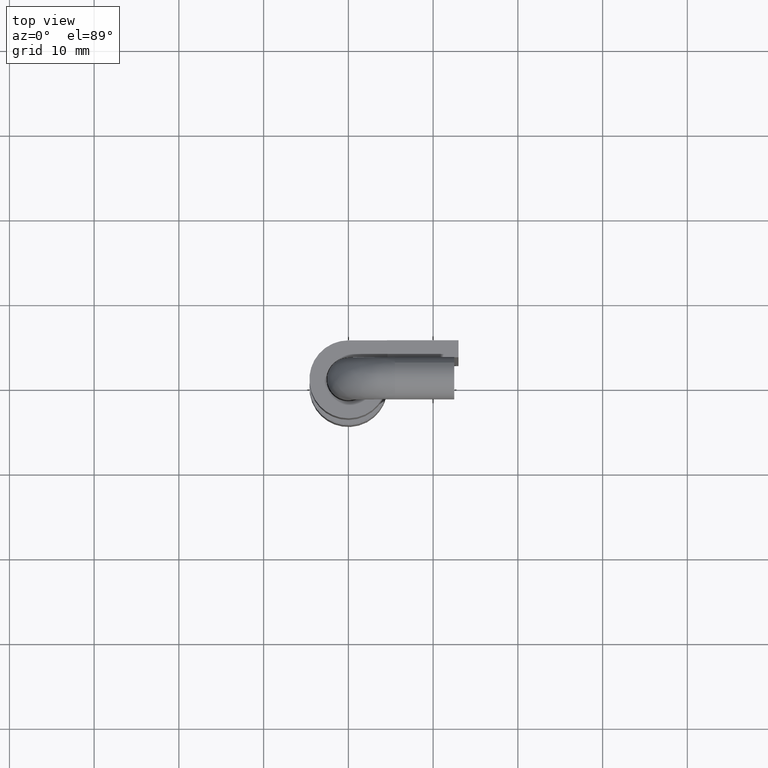
[diagram: clean part render]
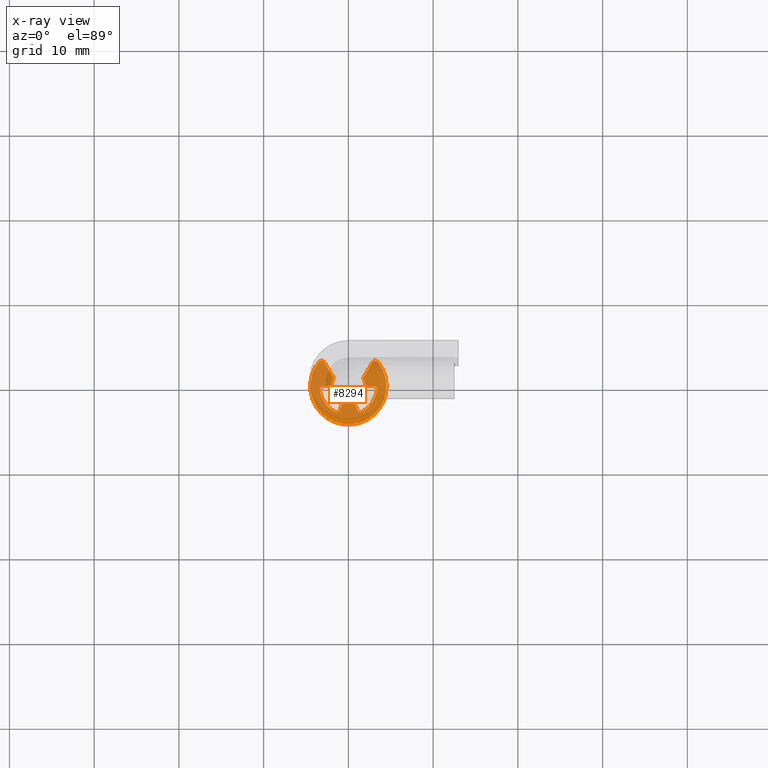
[diagram: x-ray — body ghosted, one internal face saturated and labeled with its STEP entity id]
A machine part, top view, then the same camera in x-ray: the body is ghosted and one INTERNAL B-rep face — a face not visible from any outside direction — is saturated and labeled: STEP entity #8294.
In plain terms, the highlighted face is a freeform B-spline surface patch.
Its self-contained STEP definition (entity closure, byte-faithful):
#8049=CARTESIAN_POINT('',(-4.939659992833498,-4.875198945035996,25.750000000034849));
#8050=CARTESIAN_POINT('',(4.939660234492952,-4.875198945035996,25.750000000034849));
#8051=CARTESIAN_POINT('',(-4.939659992833498,3.386689829091729,25.750000000034849));
#8052=CARTESIAN_POINT('',(4.939660234492952,3.386689829091729,25.750000000034849));
#8053=B_SPLINE_SURFACE_WITH_KNOTS('',1,1,((#8049,#8051),(#8050,#8052)),.UNSPECIFIED.,.F.,.F.,.U.,(2,2),(2,2),(0.0,9.879320227326449),(0.0,8.261888774127725),.UNSPECIFIED.);
#8054=CARTESIAN_POINT('',(2.814243000000035,2.811569000000000,25.750000000034898));
#8055=VERTEX_POINT('',#8054);
#8056=CARTESIAN_POINT('',(3.469008327923510,2.866353296576910,25.750000000034898));
#8057=VERTEX_POINT('',#8056);
#8058=CARTESIAN_POINT('',(2.814243000000035,2.811569000000000,25.750000000034898));
#8059=CARTESIAN_POINT('',(2.918840081879053,2.992730241213392,25.750000000034902));
#8060=CARTESIAN_POINT('',(3.127300447568566,3.010172167459911,25.750000000034898));
#8061=CARTESIAN_POINT('',(3.335760813258079,3.027614093706430,25.750000000034902));
#8062=CARTESIAN_POINT('',(3.469008327923510,2.866353296576910,25.750000000034898));
#8070=(BOUNDED_CURVE()B_SPLINE_CURVE(2,(#8058,#8059,#8060,#8061,#8062),.UNSPECIFIED.,.F.,.U.)B_SPLINE_CURVE_WITH_KNOTS((3,2,3),(0.0,0.500000000000000,1.0),.UNSPECIFIED.)CURVE()GEOMETRIC_REPRESENTATION_ITEM()RATIONAL_B_SPLINE_CURVE((1.0,0.886136415497136,1.0,0.886136415497136,1.0))REPRESENTATION_ITEM(''));
#8071=EDGE_CURVE('',#8055,#8057,#8070,.T.);
#8072=ORIENTED_EDGE('',*,*,#8071,.T.);
#8073=CARTESIAN_POINT('',(-3.469011479641475,2.866349482201300,25.750000000034898));
#8074=VERTEX_POINT('',#8073);
#8075=CARTESIAN_POINT('',(3.469008327923510,2.866353296576911,25.750000000034898));
#8076=CARTESIAN_POINT('',(6.159627246470954,-0.389972239726072,25.750000000034902));
#8077=CARTESIAN_POINT('',(3.079815319841502,-3.280965954664812,25.750000000034898));
#8078=CARTESIAN_POINT('',(0.000003393212051,-6.171959669603554,25.750000000034902));
#8079=CARTESIAN_POINT('',(-3.079811712229154,-3.280969341096641,25.750000000034898));
#8080=CARTESIAN_POINT('',(-6.159626817670355,-0.389979012589730,25.750000000034902));
#8081=CARTESIAN_POINT('',(-3.469011479641474,2.866349482201301,25.750000000034898));
#8089=(BOUNDED_CURVE()B_SPLINE_CURVE(2,(#8075,#8076,#8077,#8078,#8079,#8080,#8081),.UNSPECIFIED.,.F.,.U.)B_SPLINE_CURVE_WITH_KNOTS((3,2,2,3),(0.0,0.333333333333333,0.666666666666667,1.0),.UNSPECIFIED.)CURVE()GEOMETRIC_REPRESENTATION_ITEM()RATIONAL_B_SPLINE_CURVE((1.0,0.729103921751383,1.0,0.729103921751383,1.0,0.729103921751383,1.0))REPRESENTATION_ITEM(''));
#8090=EDGE_CURVE('',#8057,#8074,#8089,.T.);
#8091=ORIENTED_EDGE('',*,*,#8090,.T.);
#8092=CARTESIAN_POINT('',(-2.814243541780655,2.811564486089975,25.750000000034898));
#8093=VERTEX_POINT('',#8092);
#8094=CARTESIAN_POINT('',(-3.469011479641475,2.866349482201300,25.750000000034898));
#8095=CARTESIAN_POINT('',(-3.335764949053940,3.027614525413569,25.750000000034898));
#8096=CARTESIAN_POINT('',(-3.127301967155006,3.010172127263307,25.750000000034898));
#8097=CARTESIAN_POINT('',(-2.918838985256072,2.992729729113045,25.750000000034898));
#8098=CARTESIAN_POINT('',(-2.814243541780645,2.811564486089981,25.750000000034898));
#8106=(BOUNDED_CURVE()B_SPLINE_CURVE(2,(#8094,#8095,#8096,#8097,#8098),.UNSPECIFIED.,.F.,.U.)B_SPLINE_CURVE_WITH_KNOTS((3,2,3),(0.0,0.500000000000000,1.0),.UNSPECIFIED.)CURVE()GEOMETRIC_REPRESENTATION_ITEM()RATIONAL_B_SPLINE_CURVE((1.0,0.886134007897589,1.0,0.886134007897589,1.0))REPRESENTATION_ITEM(''));
#8107=EDGE_CURVE('',#8074,#8093,#8106,.T.);
#8108=ORIENTED_EDGE('',*,*,#8107,.T.);
#8109=CARTESIAN_POINT('',(-1.749998000000000,0.968247000000000,25.750000000034898));
#8110=VERTEX_POINT('',#8109);
#8111=CARTESIAN_POINT('',(-2.814243541780655,2.811564486089975,25.750000000034898));
#8112=CARTESIAN_POINT('',(-1.749998000000000,0.968247000000000,25.750000000034898));
#8113=QUASI_UNIFORM_CURVE('',1,(#8111,#8112),.UNSPECIFIED.,.F.,.U.);
#8114=EDGE_CURVE('',#8093,#8110,#8113,.T.);
#8115=ORIENTED_EDGE('',*,*,#8114,.T.);
#8116=CARTESIAN_POINT('',(-1.999999999999855,-0.000000767944871,25.750000000034898));
#8117=VERTEX_POINT('',#8116);
#8118=CARTESIAN_POINT('',(-1.999999999999855,-0.000000767944871,25.750000000034898));
#8119=CARTESIAN_POINT('',(-1.999999679081359,0.516398193194897,25.750000000034902));
#8120=CARTESIAN_POINT('',(-1.749998000000000,0.968247000000000,25.750000000034898));
#8128=(BOUNDED_CURVE()B_SPLINE_CURVE(2,(#8118,#8119,#8120),.UNSPECIFIED.,.F.,.U.)CURVE()GEOMETRIC_REPRESENTATION_ITEM()QUASI_UNIFORM_CURVE()RATIONAL_B_SPLINE_CURVE((1.0,0.968245664413561,1.0))REPRESENTATION_ITEM(''));
#8129=EDGE_CURVE('',#8117,#8110,#8128,.T.);
#8130=ORIENTED_EDGE('',*,*,#8129,.F.);
#8131=CARTESIAN_POINT('',(-2.973213000000000,0.0,25.750000000034898));
#8132=VERTEX_POINT('',#8131);
#8133=CARTESIAN_POINT('',(-1.999999999999855,-0.000000767944871,25.750000000034898));
#8134=CARTESIAN_POINT('',(-2.973213000000000,0.0,25.750000000034898));
#8135=QUASI_UNIFORM_CURVE('',1,(#8133,#8134),.UNSPECIFIED.,.F.,.U.);
#8136=EDGE_CURVE('',#8117,#8132,#8135,.T.);
#8137=ORIENTED_EDGE('',*,*,#8136,.T.);
#8138=CARTESIAN_POINT('',(-3.369641529399600,-0.453334114273040,25.750000000034898));
#8139=VERTEX_POINT('',#8138);
#8140=CARTESIAN_POINT('',(-3.369641529399600,-0.453334114273040,25.750000000034898));
#8141=CARTESIAN_POINT('',(-3.393851964864456,-0.273376164245372,25.750000000034902));
#8142=CARTESIAN_POINT('',(-3.274321988332472,-0.136688181364141,25.750000000034898));
#8143=CARTESIAN_POINT('',(-3.154792011800489,-0.000000198482910,25.750000000034902));
#8144=CARTESIAN_POINT('',(-2.973213000000000,0.0,25.750000000034898));
#8152=(BOUNDED_CURVE()B_SPLINE_CURVE(2,(#8140,#8141,#8142,#8143,#8144),.UNSPECIFIED.,.F.,.U.)B_SPLINE_CURVE_WITH_KNOTS((3,2,3),(0.0,0.500000000000000,1.0),.UNSPECIFIED.)CURVE()GEOMETRIC_REPRESENTATION_ITEM()RATIONAL_B_SPLINE_CURVE((1.0,0.910571467977568,1.0,0.910571467977568,1.0))REPRESENTATION_ITEM(''));
#8153=EDGE_CURVE('',#8139,#8132,#8152,.T.);
#8154=ORIENTED_EDGE('',*,*,#8153,.F.);
#8155=CARTESIAN_POINT('',(-1.578480529623520,-3.011378292011725,25.750000000034898));
#8156=VERTEX_POINT('',#8155);
#8157=CARTESIAN_POINT('',(-1.578480529623521,-3.011378292011724,25.750000000034898));
#8158=CARTESIAN_POINT('',(-3.135280752002617,-2.195347026176524,25.750000000034902));
#8159=CARTESIAN_POINT('',(-3.369641529399600,-0.453334114273040,25.750000000034898));
#8167=(BOUNDED_CURVE()B_SPLINE_CURVE(2,(#8157,#8158,#8159),.UNSPECIFIED.,.F.,.U.)CURVE()GEOMETRIC_REPRESENTATION_ITEM()QUASI_UNIFORM_CURVE()RATIONAL_B_SPLINE_CURVE((1.0,0.888315034763492,1.0))REPRESENTATION_ITEM(''));
#8168=EDGE_CURVE('',#8156,#8139,#8167,.T.);
#8169=ORIENTED_EDGE('',*,*,#8168,.F.);
#8170=CARTESIAN_POINT('',(-1.016899023318246,-2.793905254139005,25.750000000034898));
#8171=VERTEX_POINT('',#8170);
#8172=CARTESIAN_POINT('',(-1.016899023318246,-2.793905254139005,25.750000000034898));
#8173=CARTESIAN_POINT('',(-1.079002983578292,-2.964534068624199,25.750000000034898));
#8174=CARTESIAN_POINT('',(-1.248329432398294,-3.030105916706155,25.750000000034898));
#8175=CARTESIAN_POINT('',(-1.417655881218296,-3.095677764788112,25.750000000034898));
#8176=CARTESIAN_POINT('',(-1.578480529623520,-3.011378292011725,25.750000000034898));
#8184=(BOUNDED_CURVE()B_SPLINE_CURVE(2,(#8172,#8173,#8174,#8175,#8176),.UNSPECIFIED.,.F.,.U.)B_SPLINE_CURVE_WITH_KNOTS((3,2,3),(0.0,0.500000000000000,1.0),.UNSPECIFIED.)CURVE()GEOMETRIC_REPRESENTATION_ITEM()RATIONAL_B_SPLINE_CURVE((1.0,0.910571394558239,1.0,0.910571394558239,1.0))REPRESENTATION_ITEM(''));
#8185=EDGE_CURVE('',#8171,#8156,#8184,.T.);
#8186=ORIENTED_EDGE('',*,*,#8185,.F.);
#8187=CARTESIAN_POINT('',(-0.684039999999982,-1.879379000000000,25.750000000034898));
#8188=VERTEX_POINT('',#8187);
#8189=CARTESIAN_POINT('',(-1.016899023318246,-2.793905254139005,25.750000000034898));
#8190=CARTESIAN_POINT('',(-0.684039999999982,-1.879379000000000,25.750000000034898));
#8191=QUASI_UNIFORM_CURVE('',1,(#8189,#8190),.UNSPECIFIED.,.F.,.U.);
#8192=EDGE_CURVE('',#8171,#8188,#8191,.T.);
#8193=ORIENTED_EDGE('',*,*,#8192,.T.);
#8194=CARTESIAN_POINT('',(0.684038515372173,-1.879385886263765,25.750000000034898));
#8195=VERTEX_POINT('',#8194);
#8196=CARTESIAN_POINT('',(0.684038515372173,-1.879385886263765,25.750000000034898));
#8197=CARTESIAN_POINT('',(-0.000000975744737,-2.128352739374768,25.750000000034898));
#8198=CARTESIAN_POINT('',(-0.684039999999982,-1.879379000000000,25.750000000034898));
#8206=(BOUNDED_CURVE()B_SPLINE_CURVE(2,(#8196,#8197,#8198),.UNSPECIFIED.,.F.,.U.)CURVE()GEOMETRIC_REPRESENTATION_ITEM()QUASI_UNIFORM_CURVE()RATIONAL_B_SPLINE_CURVE((1.0,0.939692622459320,1.0))REPRESENTATION_ITEM(''));
#8207=EDGE_CURVE('',#8195,#8188,#8206,.T.);
#8208=ORIENTED_EDGE('',*,*,#8207,.F.);
#8209=CARTESIAN_POINT('',(1.016896999999972,-2.793907000000000,25.750000000034898));
#8210=VERTEX_POINT('',#8209);
#8211=CARTESIAN_POINT('',(0.684038515372173,-1.879385886263765,25.750000000034898));
#8212=CARTESIAN_POINT('',(1.016896999999972,-2.793907000000000,25.750000000034898));
#8213=QUASI_UNIFORM_CURVE('',1,(#8211,#8212),.UNSPECIFIED.,.F.,.U.);
#8214=EDGE_CURVE('',#8195,#8210,#8213,.T.);
#8215=ORIENTED_EDGE('',*,*,#8214,.T.);
#8216=CARTESIAN_POINT('',(1.578479059952220,-3.011377077797760,25.750000000034898));
#8217=VERTEX_POINT('',#8216);
#8218=CARTESIAN_POINT('',(1.578479059952220,-3.011377077797760,25.750000000034898));
#8219=CARTESIAN_POINT('',(1.417654402395793,-3.095676496389852,25.750000000034895));
#8220=CARTESIAN_POINT('',(1.248327948685940,-3.030105603572101,25.750000000034898));
#8221=CARTESIAN_POINT('',(1.079001494976088,-2.964534710754351,25.750000000034895));
#8222=CARTESIAN_POINT('',(1.016896999999972,-2.793907000000000,25.750000000034898));
#8230=(BOUNDED_CURVE()B_SPLINE_CURVE(2,(#8218,#8219,#8220,#8221,#8222),.UNSPECIFIED.,.F.,.U.)B_SPLINE_CURVE_WITH_KNOTS((3,2,3),(0.0,0.500000000000000,1.0),.UNSPECIFIED.)CURVE()GEOMETRIC_REPRESENTATION_ITEM()RATIONAL_B_SPLINE_CURVE((1.0,0.910571830263281,1.0,0.910571830263281,1.0))REPRESENTATION_ITEM(''));
#8231=EDGE_CURVE('',#8217,#8210,#8230,.T.);
#8232=ORIENTED_EDGE('',*,*,#8231,.F.);
#8233=CARTESIAN_POINT('',(3.369642333741815,-0.453332706359262,25.750000000034898));
#8234=VERTEX_POINT('',#8233);
#8235=CARTESIAN_POINT('',(3.369642333741815,-0.453332706359262,25.750000000034898));
#8236=CARTESIAN_POINT('',(3.135281124894981,-2.195346269178885,25.750000000034898));
#8237=CARTESIAN_POINT('',(1.578479059952220,-3.011377077797760,25.750000000034898));
#8245=(BOUNDED_CURVE()B_SPLINE_CURVE(2,(#8235,#8236,#8237),.UNSPECIFIED.,.F.,.U.)CURVE()GEOMETRIC_REPRESENTATION_ITEM()QUASI_UNIFORM_CURVE()RATIONAL_B_SPLINE_CURVE((1.0,0.888314883447916,1.0))REPRESENTATION_ITEM(''));
#8246=EDGE_CURVE('',#8234,#8217,#8245,.T.);
#8247=ORIENTED_EDGE('',*,*,#8246,.F.);
#8248=CARTESIAN_POINT('',(2.973213125663695,-0.000001000000023,25.750000000034898));
#8249=VERTEX_POINT('',#8248);
#8250=CARTESIAN_POINT('',(2.973213125663695,-0.000001000000020,25.750000000034898));
#8251=CARTESIAN_POINT('',(3.154791646519333,-0.000001057044589,25.750000000034898));
#8252=CARTESIAN_POINT('',(3.274321535131319,-0.136688163109978,25.750000000034898));
#8253=CARTESIAN_POINT('',(3.393851423743305,-0.273375269175366,25.750000000034898));
#8254=CARTESIAN_POINT('',(3.369642333741815,-0.453332706359262,25.750000000034898));
#8262=(BOUNDED_CURVE()B_SPLINE_CURVE(2,(#8250,#8251,#8252,#8253,#8254),.UNSPECIFIED.,.F.,.U.)B_SPLINE_CURVE_WITH_KNOTS((3,2,3),(0.0,0.500000000000000,1.0),.UNSPECIFIED.)CURVE()GEOMETRIC_REPRESENTATION_ITEM()RATIONAL_B_SPLINE_CURVE((1.0,0.910571888626893,1.0,0.910571888626893,1.0))REPRESENTATION_ITEM(''));
#8263=EDGE_CURVE('',#8249,#8234,#8262,.T.);
#8264=ORIENTED_EDGE('',*,*,#8263,.F.);
#8265=CARTESIAN_POINT('',(2.0,0.0,25.750000000034898));
#8266=VERTEX_POINT('',#8265);
#8267=CARTESIAN_POINT('',(2.973213125663695,-0.000001000000023,25.750000000034898));
#8268=CARTESIAN_POINT('',(2.0,0.0,25.750000000034898));
#8269=QUASI_UNIFORM_CURVE('',1,(#8267,#8268),.UNSPECIFIED.,.F.,.U.);
#8270=EDGE_CURVE('',#8249,#8266,#8269,.T.);
#8271=ORIENTED_EDGE('',*,*,#8270,.T.);
#8272=CARTESIAN_POINT('',(1.749999735898780,0.968246313886196,25.750000000034898));
#8273=VERTEX_POINT('',#8272);
#8274=CARTESIAN_POINT('',(1.749999735898779,0.968246313886195,25.750000000034898));
#8275=CARTESIAN_POINT('',(2.000000000000000,0.516398070441000,25.750000000034902));
#8276=CARTESIAN_POINT('',(2.0,0.0,25.750000000034898));
#8284=(BOUNDED_CURVE()B_SPLINE_CURVE(2,(#8274,#8275,#8276),.UNSPECIFIED.,.F.,.U.)CURVE()GEOMETRIC_REPRESENTATION_ITEM()QUASI_UNIFORM_CURVE()RATIONAL_B_SPLINE_CURVE((1.0,0.968245802456533,1.0))REPRESENTATION_ITEM(''));
#8285=EDGE_CURVE('',#8273,#8266,#8284,.T.);
#8286=ORIENTED_EDGE('',*,*,#8285,.F.);
#8287=CARTESIAN_POINT('',(1.749999735898780,0.968246313886196,25.750000000034898));
#8288=CARTESIAN_POINT('',(2.814243000000035,2.811569000000000,25.750000000034898));
#8289=QUASI_UNIFORM_CURVE('',1,(#8287,#8288),.UNSPECIFIED.,.F.,.U.);
#8290=EDGE_CURVE('',#8273,#8055,#8289,.T.);
#8291=ORIENTED_EDGE('',*,*,#8290,.T.);
#8292=EDGE_LOOP('',(#8072,#8091,#8108,#8115,#8130,#8137,#8154,#8169,#8186,#8193,#8208,#8215,#8232,#8247,#8264,#8271,#8286,#8291));
#8293=FACE_OUTER_BOUND('',#8292,.T.);
#8294=ADVANCED_FACE('',(#8293),#8053,.F.);